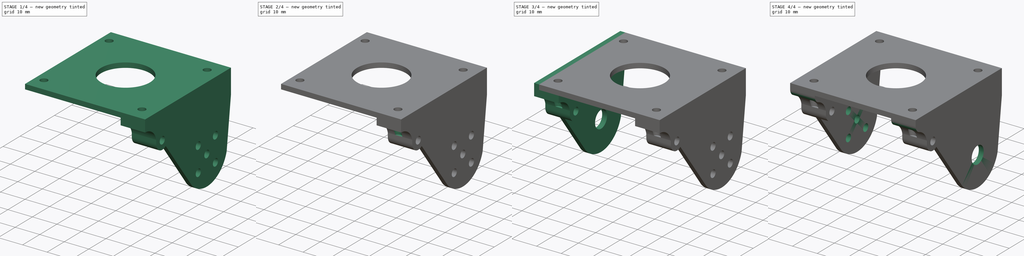
[diagram: build sequence overview — one tinted view per stage of 4, left to right]
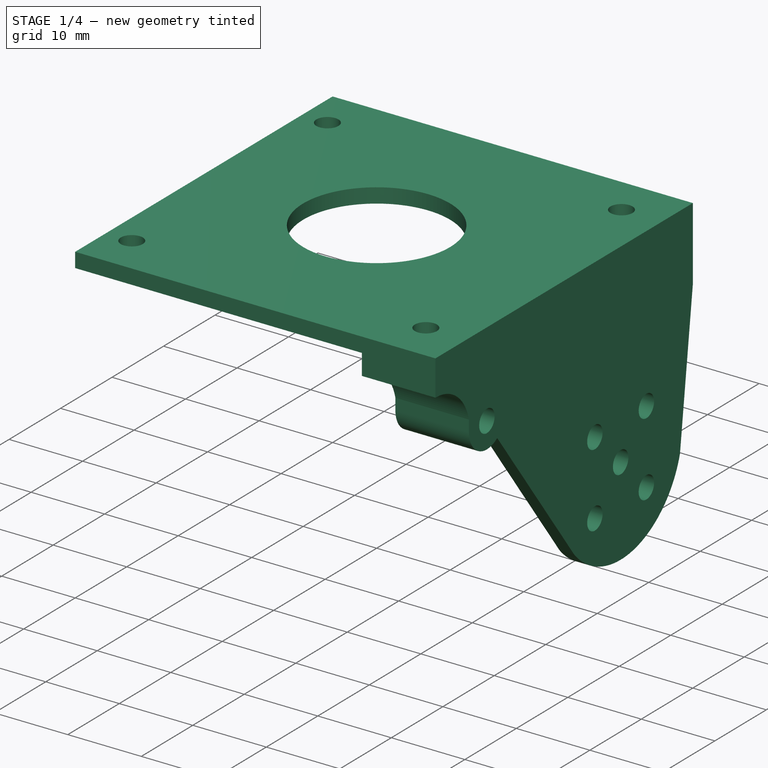
[diagram: stage 1 of 4 — iso view after this stage's code; geometry added in this stage tinted green]
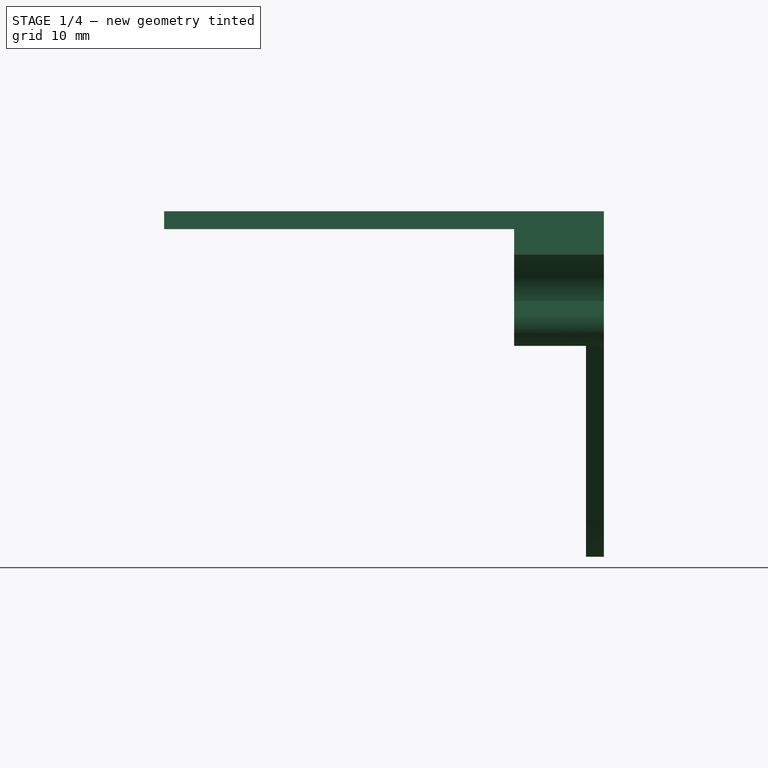
[diagram: stage 1 of 4 — front view after this stage's code; geometry added in this stage tinted green]
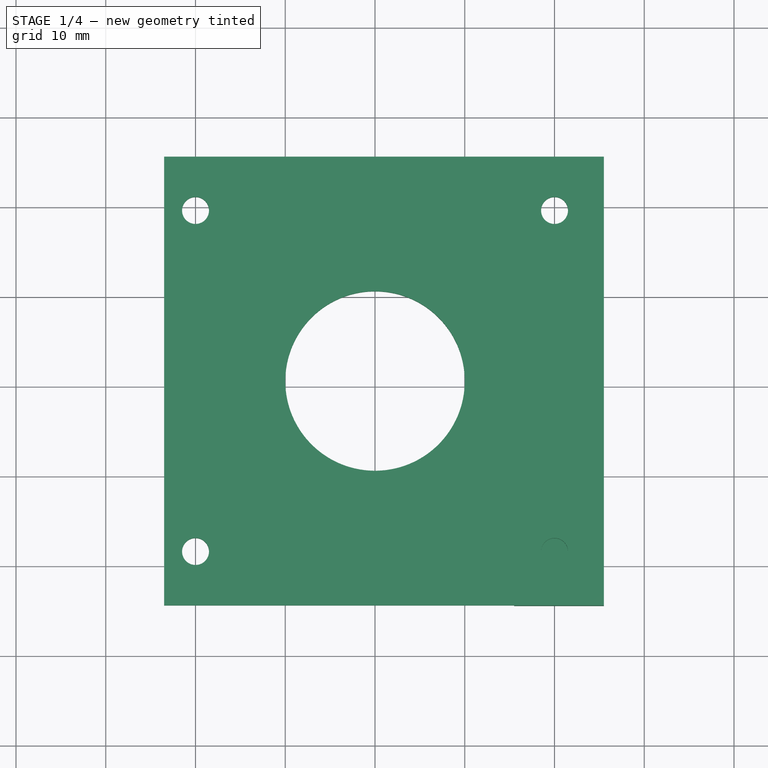
[diagram: stage 1 of 4 — top view after this stage's code; geometry added in this stage tinted green]
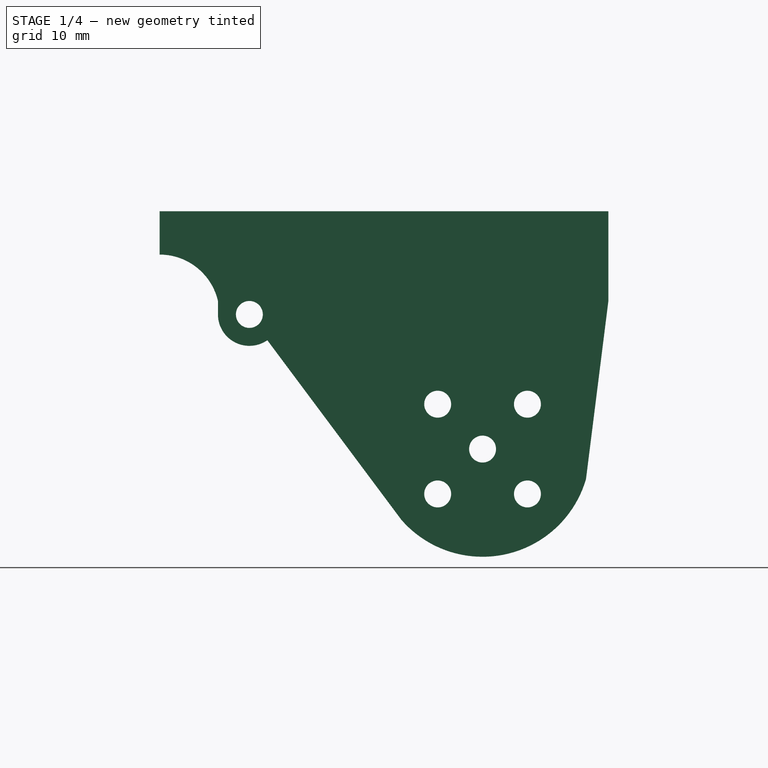
[diagram: stage 1 of 4 — right view after this stage's code; geometry added in this stage tinted green]
FCSTD DOCUMENT  (FreeCAD 0.21R33668 +26 (Git))
Label: 5L_hipjoint_lower2
License: All rights reserved
LicenseURL: http://en.wikipedia.org/wiki/All_rights_reserved
objects: Sketcher::SketchObject×11, PartDesign::Pad×7, PartDesign::Pocket×4, Spreadsheet::Sheet×1, PartDesign::Fillet×1, PartDesign::Body×1, Part::Mirroring×1
note: 37 computed .brp shape members not serialized (recipe doc carries the construction recipe); baked Part::Feature solids carry a one-line shape summary decoded from their .brp

FEATURE [Sketcher::SketchObject] Sketch  label="baseSketch"
  FullyConstrained = true
  MapMode = 5
  Support = -> [XY_Plane]
  expr: Constraints[10] = Spreadsheet.hip_plate_depth
  expr: Constraints[11] = Spreadsheet.cable_hole_dia
  expr: Constraints[14] = Spreadsheet.screw_plate_width
  expr: Constraints[16] = Spreadsheet.screw_plate_depth
  expr: Constraints[20] = Spreadsheet.screw_dia
  expr: Constraints[23] = Spreadsheet.hip_screw_offset
  expr: Constraints[9] = Spreadsheet.hip_plate_width
  sketch-geometry (10):
    g0: LineSegment StartX=-23.5 StartY=25 StartZ=0 EndX=23.5 EndY=25 EndZ=0
    g1: LineSegment StartX=23.5 StartY=25 StartZ=0 EndX=23.5 EndY=-25 EndZ=0
    g2: LineSegment StartX=23.5 StartY=-25 StartZ=0 EndX=-23.5 EndY=-25 EndZ=0
    g3: LineSegment StartX=-23.5 StartY=-25 StartZ=0 EndX=-23.5 EndY=25 EndZ=0
    g4: Circle CenterX=0 CenterY=0 CenterZ=0 NormalX=0 NormalY=0 NormalZ=1 AngleXU=0 Radius=10
    g5: Circle CenterX=-20 CenterY=-19 CenterZ=0 NormalX=0 NormalY=0 NormalZ=1 AngleXU=0 Radius=1.5
    g6: Circle CenterX=20 CenterY=-19 CenterZ=0 NormalX=0 NormalY=0 NormalZ=1 AngleXU=0 Radius=1.5
    g7: Circle CenterX=-20 CenterY=19 CenterZ=0 NormalX=0 NormalY=0 NormalZ=1 AngleXU=0 Radius=1.5
    g8: Circle CenterX=20 CenterY=19 CenterZ=0 NormalX=0 NormalY=0 NormalZ=1 AngleXU=0 Radius=1.5
    g9: GeomPoint X=-20 Y=0 Z=0
  constraints (24):
    c: Coincident(g0,g1)
    c: Coincident(g1,g2)
    c: Coincident(g2,g3)
    c: Coincident(g3,g0)
    c: Horizontal(g0)
    c: Horizontal(g2)
    c: Vertical(g1)
    c: Vertical(g3)
    c: Symmetric(g0,g1,g-1)
    c: DistanceX(g2,g2) = 47
    c: DistanceY(g1,g1) = 50
    c: Diameter(g4) = 20
    c: Coincident(g-1,g4)
    c: Symmetric(g5,g6,g-2)
    c: DistanceX(g5,g6) = 40
    c: Symmetric(g7,g8,g-2)
    c: DistanceY(g6,g8) = 38
    c: Equal(g7,g8)
    c: Equal(g7,g6)
    c: Equal(g7,g5)
    c: Diameter(g7) = 3
    c: Vertical(g5,g7)
    c: Symmetric(g5,g7,g9)
    c: DistanceY(g9,g4) = 0
FEATURE [Spreadsheet::Sheet] Spreadsheet
  cells = A2='thickness; B2(thickness)=2; A4='hip_plate_width; B4(hip_plate_width)=47; A5='hip_plate_depth; B5(hip_plate_depth)=50; C5='z; A6='hip_screw_offset; B6(hip_screw_offset)=0; A7='lower_upper_hip_offset; B7(lower_upper_hip_offset)=10; A8='screw_plate_width; B8(screw_plate_width)=40; A9='screw_plate_depth; B9(screw_plate_depth)=38; A10='screw_housing_width; B10(screw_housing_width)=8; A11='front_connect_screw_len; B11(front_connect_screw_len)==10 - B2; C11='subtract upper hip thickness; A12='back_connect_screw_len; B12(back_connect_screw_len)==6 - B2; C12='4mm minus thickness; A13='screw_distance; B13(screw_distance)=7; A14='screw_center_height; B14(screw_center_height)=25; A15='screw_cover_thickness; B15(screw_cover_thickness)=2; A16='screw_dia; B16(screw_dia)=3; A17='axis_dia; B17(axis_dia)=6; A18='axis_hole_dia; B18(axis_hole_dia)=7; A19='cable_hole_dia; B19(cable_hole_dia)=20; A21='servo_disc_outer_screw_dist; B21(servo_disc_outer_screw_dist)=10; A22='screw_servo_distance; B22(screw_servo_distance)==sqrt(B24 * B24 - B23 * B23); C22='variable e; A23='screw_servo_height; B23(screw_servo_height)=15; C23='variable a; A24='screw_servo_radius; B24(screw_servo_radius)=30; C24='variable f; A25='screw_servo_clearance; B25(screw_servo_clearance)=14; A27='knee_z_len; B27(knee_z_len)=40; A28='knee_x_len; B28(knee_x_len)=50; A29='knee_y_len; B29(knee_y_len)=44; A30='knee_front_len; B30(knee_front_len)==68 - 2 * B32; A31='knee_back_len; B31(knee_back_len)=36; A32='screw_outer_radius; B32(screw_outer_radius)=3; A33='knee_front_holes_dist; B33(knee_front_holes_dist)=55; A34='knee_front_holes_y_offset; B34(knee_front_holes_y_offset)=5; A35='knee_front_back_whole_dist; B35(knee_front_back_whole_dist)=30; A36='knee_back_holes_dist; B36(knee_back_holes_dist)=25
FEATURE [PartDesign::Pad] Pad  label="basePad"
  Direction = (0,0,1)
  Length = 2
  Length2 = 10
  Profile = -> Sketch
  ReferenceAxis = -> Sketch [N_Axis]
  Type = 0
  expr: Length = Spreadsheet.thickness
FEATURE [Sketcher::SketchObject] Sketch001  label="leftSideSketch"
  ExternalGeometry = -> [Pad]
  FullyConstrained = true
  MapMode = 5
  Placement = pos=(23.5,0,0) rot=(0.57735,0.57735,0.57735;2.0944rad)
  Support = -> [Pad]
  expr: Constraints[17] = Spreadsheet.screw_dia
  expr: Constraints[18] = Spreadsheet.screw_servo_height
  expr: Constraints[19] = Spreadsheet.screw_servo_distance
  expr: Constraints[21] = Spreadsheet.screw_dia / 2 + Spreadsheet.screw_cover_thickness
  expr: Constraints[24] = 0
  expr: Constraints[29] = Spreadsheet.thickness
  expr: Constraints[30] = Spreadsheet.lower_upper_hip_offset
  expr: Constraints[34] = 12 mm
  expr: Constraints[37] = Spreadsheet.front_connect_screw_len + Spreadsheet.thickness
  expr: Constraints[5] = Spreadsheet.servo_disc_outer_screw_dist
  expr: Constraints[6] = Spreadsheet.servo_disc_outer_screw_dist
  sketch-geometry (16):
    g0: LineSegment StartX=-25 StartY=2 StartZ=0 EndX=25 EndY=2 EndZ=0
    g1: LineSegment StartX=-13 StartY=-12.3723 StartZ=0 EndX=1.95394 EndY=-32.4067 EndZ=0
    g2: LineSegment StartX=22.5055 StartY=-27.8438 StartZ=0 EndX=25 EndY=-8 EndZ=0
    g3: LineSegment StartX=25 StartY=-8 StartZ=0 EndX=25 EndY=2 EndZ=0
    g4: Circle CenterX=-15 CenterY=-9.5 CenterZ=0 NormalX=0 NormalY=0 NormalZ=1 AngleXU=0 Radius=1.5
    g5: Circle CenterX=15.9808 CenterY=-19.5 CenterZ=0 NormalX=0 NormalY=0 NormalZ=1 AngleXU=0 Radius=1.5
    g6: Circle CenterX=5.98076 CenterY=-19.5 CenterZ=0 NormalX=0 NormalY=0 NormalZ=1 AngleXU=0 Radius=1.5
    g7: Circle CenterX=10.9808 CenterY=-24.5 CenterZ=0 NormalX=0 NormalY=0 NormalZ=1 AngleXU=0 Radius=1.5
    g8: Circle CenterX=15.9808 CenterY=-29.5 CenterZ=0 NormalX=0 NormalY=0 NormalZ=1 AngleXU=0 Radius=1.5
    g9: Circle CenterX=5.98076 CenterY=-29.5 CenterZ=0 NormalX=0 NormalY=0 NormalZ=1 AngleXU=0 Radius=1.5
    g10: ArcOfCircle CenterX=-15 CenterY=-9.5 CenterZ=0 NormalX=0 NormalY=0 NormalZ=1 AngleXU=0 Radius=3.5 StartAngle=3.14159 EndAngle=5.32063
    g11: GeomPoint X=-15 Y=-8 Z=0
    g12: LineSegment StartX=-18.5 StartY=-8 StartZ=0 EndX=-18.5 EndY=-9.5 EndZ=0
    g13: ArcOfCircle CenterX=10.9808 CenterY=-24.5 CenterZ=0 NormalX=0 NormalY=0 NormalZ=1 AngleXU=0 Radius=12 StartAngle=3.86094 EndAngle=6.0008
    g14: LineSegment StartX=-25 StartY=2 StartZ=0 EndX=-25 EndY=-2.82917 EndZ=0
    g15: ArcOfCircle CenterX=-25 CenterY=-9.5 CenterZ=0 NormalX=0 NormalY=0 NormalZ=1 AngleXU=0 Radius=6.67083 StartAngle=0.226799 EndAngle=1.5708
  constraints (42):
    c: Coincident(g0,g-3)
    c: Coincident(g0,g-3)
    c: Coincident(g3,g2)
    c: Coincident(g3,g0)
    c: Vertical(g3)
    c: DistanceX(g6,g5) = 10
    c: DistanceY(g9,g6) = 10
    c: Vertical(g9,g6)
    c: Horizontal(g6,g5)
    c: Horizontal(g8,g9)
    c: Vertical(g8,g5)
    c: Symmetric(g6,g8,g7)
    c: Equal(g5, g6-g9) x4
    c: Equal(g5,g4)
    c: Diameter(g5) = 3
    c: DistanceY(g7,g4) = 15
    c: DistanceX(g4,g7) = 25.9808
    c: Coincident(g10,g4)
    c: Radius(g10) = 3.5
    c: PointOnObject(g11,g4)
    c: Vertical(g11,g4)
    c: DistanceY(g11,g12) = 0
    c: Horizontal(g10,g4)
    c: Coincident(g12,g10)
    c: Vertical(g12)
    c: Coincident(g1,g10)
    c: DistanceX(g4,g1) = 2
    c: DistanceX(g0,g4) = 10
    c: Coincident(g13,g2)
    c: Coincident(g13,g1)
    c: Horizontal(g2,g12)
    c: Radius(g13) = 12
    c: Coincident(g13,g7)
    c: Distance(g1) = 25
    c: DistanceY(g12,g0) = 10
    c: Vertical(g14,g0)
    c: Coincident(g14,g0)
    c: Coincident(g15,g14)
    c: Coincident(g15,g12)
    c: Vertical(g14,g15)
    c: Horizontal(g15,g4)
    c: Distance(g2) = 20
FEATURE [PartDesign::Pad] Pad001  label="leftSidePad"
  BaseFeature = -> Pad
  Direction = (1,0,0)
  Length = 2
  Length2 = 10
  Profile = -> Sketch001
  ReferenceAxis = -> Sketch001 [N_Axis]
  Type = 0
  expr: Length = Spreadsheet.thickness
FEATURE [Sketcher::SketchObject] Sketch002  label="leftFrontScrewHouseSketch"
  ExternalGeometry = -> [Pad001]
  FullyConstrained = true
  MapMode = 5
  Placement = pos=(23.5,0,0) rot=(0.57735,-0.57735,-0.57735;2.0944rad)
  Support = -> [Pad001]
  sketch-geometry (7):
    g0: LineSegment StartX=18.5 StartY=-8 StartZ=0 EndX=18.5 EndY=-9.5 EndZ=0
    g1: LineSegment StartX=11.5 StartY=-9.5 StartZ=0 EndX=11.5 EndY=0 EndZ=0
    g2: LineSegment StartX=25 StartY=0 StartZ=0 EndX=11.5 EndY=0 EndZ=0
    g3: ArcOfCircle CenterX=25 CenterY=-9.5 CenterZ=0 NormalX=0 NormalY=0 NormalZ=1 AngleXU=0 Radius=6.67083 StartAngle=1.5708 EndAngle=2.91479
    g4: LineSegment StartX=25 StartY=0 StartZ=0 EndX=25 EndY=-2.82917 EndZ=0
    g5: ArcOfCircle CenterX=15 CenterY=-9.5 CenterZ=0 NormalX=0 NormalY=0 NormalZ=1 AngleXU=0 Radius=3.5 StartAngle=3.14159 EndAngle=6.28319
    g6: Circle CenterX=15 CenterY=-9.5 CenterZ=0 NormalX=0 NormalY=0 NormalZ=1 AngleXU=0 Radius=1.5
  constraints (18):
    c: PointOnObject(g1,g-1)
    c: Coincident(g0,g-5)
    c: Vertical(g1)
    c: Coincident(g2,g1)
    c: Coincident(g3,g-4)
    c: Coincident(g3,g0)
    c: Coincident(g0,g-5)
    c: Vertical(g3,g-4)
    c: Coincident(g4,g2)
    c: Coincident(g4,g3)
    c: Coincident(g5,g0)
    c: Vertical(g5,g-6)
    c: Horizontal(g5,g-6)
    c: Horizontal(g0,g5)
    c: Coincident(g1,g5)
    c: Coincident(g2,g-3)
    c: Coincident(g6,g5)
    c: Equal(g-6,g6)
FEATURE [PartDesign::Pad] Pad002  label="leftFrontScrewHousePad"
  BaseFeature = -> Pad001
  Direction = (-1,0,0)
  Length = 8
  Length2 = 10
  Profile = -> Sketch002
  ReferenceAxis = -> Sketch002 [N_Axis]
  Type = 0
  expr: Length = Spreadsheet.front_connect_screw_len
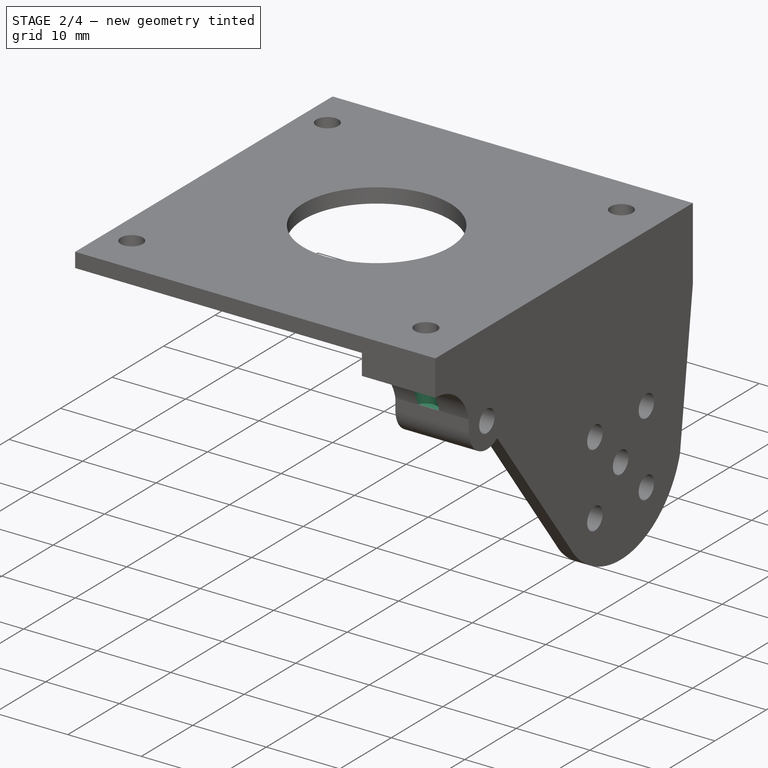
[diagram: stage 2 of 4 — iso view after this stage's code; geometry added in this stage tinted green]
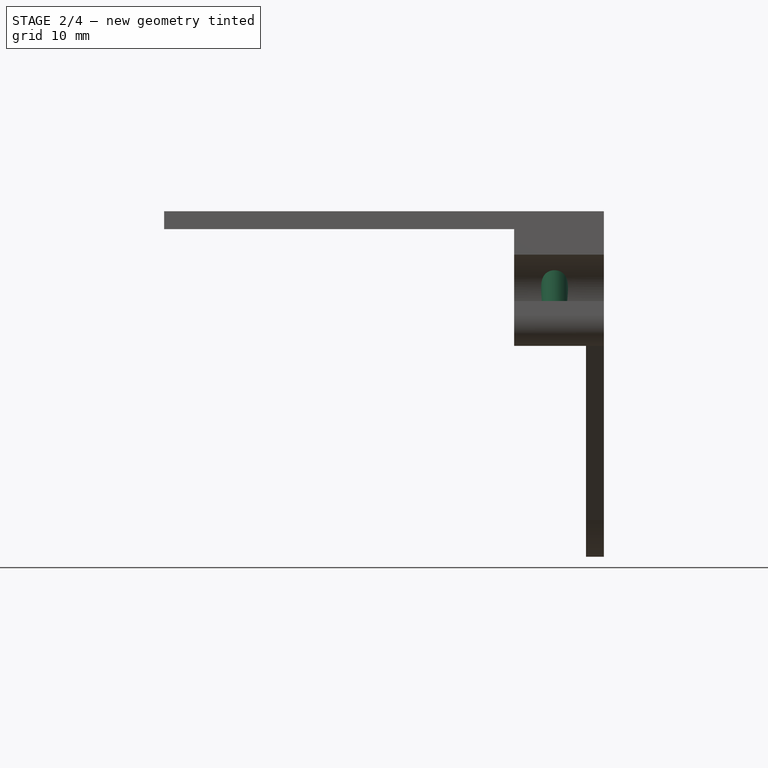
[diagram: stage 2 of 4 — front view after this stage's code; geometry added in this stage tinted green]
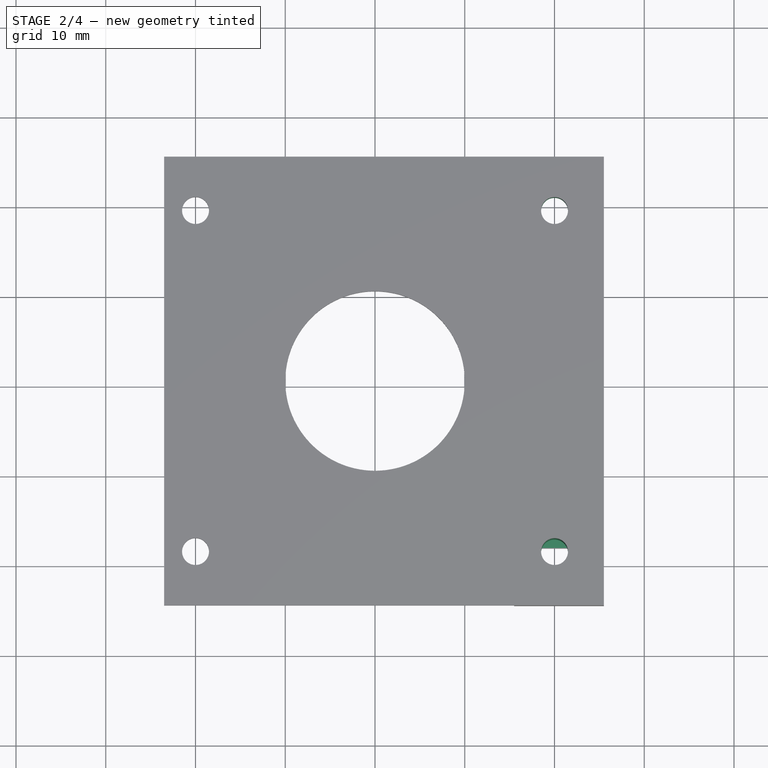
[diagram: stage 2 of 4 — top view after this stage's code; geometry added in this stage tinted green]
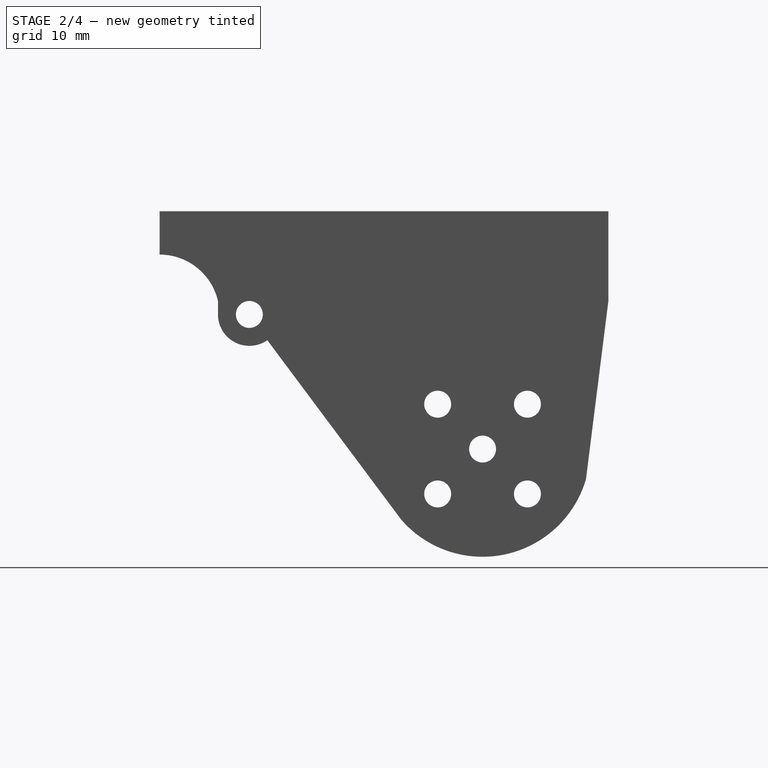
[diagram: stage 2 of 4 — right view after this stage's code; geometry added in this stage tinted green]
FEATURE [Sketcher::SketchObject] Sketch003  label="leftBackScrewHouseSketch"
  ExternalGeometry = -> [Pad002]
  FullyConstrained = true
  MapMode = 5
  Placement = pos=(23.5,0,0) rot=(0.57735,-0.57735,-0.57735;2.0944rad)
  Support = -> [Pad002]
  expr: Constraints[11] = Spreadsheet.screw_cover_thickness
  expr: Constraints[12] = Spreadsheet.screw_cover_thickness
  expr: Constraints[16] = Spreadsheet.back_connect_screw_len
  sketch-geometry (6):
    g0: LineSegment StartX=-25 StartY=0 StartZ=0 EndX=-15.5 EndY=0 EndZ=0
    g1: LineSegment StartX=-25 StartY=0 StartZ=0 EndX=-25 EndY=-1.5 EndZ=0
    g2: LineSegment StartX=-15.5 StartY=0 StartZ=0 EndX=-15.5 EndY=-2 EndZ=0
    g3: LineSegment StartX=-17.5 StartY=-4 StartZ=0 EndX=-22.5 EndY=-4 EndZ=0
    g4: ArcOfCircle CenterX=-22.5 CenterY=-1.5 CenterZ=0 NormalX=0 NormalY=0 NormalZ=1 AngleXU=0 Radius=2.5 StartAngle=3.14159 EndAngle=4.71239
    g5: ArcOfCircle CenterX=-17.5 CenterY=-2 CenterZ=0 NormalX=0 NormalY=0 NormalZ=1 AngleXU=0 Radius=2 StartAngle=4.71239 EndAngle=6.28319
  constraints (17):
    c: Coincident(g0,g-5)
    c: Horizontal(g0)
    c: Coincident(g1,g0)
    c: Vertical(g1)
    c: Coincident(g2,g0)
    c: Vertical(g2)
    c: Horizontal(g3)
    c: Coincident(g4,g3)
    c: Coincident(g4,g1)
    c: Vertical(g4,g3)
    c: Horizontal(g4,g1)
    c: DistanceX(g-6,g0) = 2
    c: DistanceX(g3,g-6) = 2
    c: Tangent(g2,g5) = 1.5708
    c: Tangent(g3,g5) = 1.5708
    c: Vertical(g5,g-6)
    c: DistanceY(g3,g-6) = 4
FEATURE [Sketcher::SketchObject] Sketch004  label="leftLowerHoleSketch"
  ExternalGeometry = -> [Pad002]
  FullyConstrained = true
  MapMode = 5
  Support = -> [Pad002]
  sketch-geometry (1):
    g0: Circle CenterX=20 CenterY=-19 CenterZ=0 NormalX=0 NormalY=0 NormalZ=1 AngleXU=0 Radius=1.5
  constraints (2):
    c: Coincident(g0,g-3)
    c: Tangent(g0,g-3)
FEATURE [PartDesign::Pocket] Pocket  label="leftLowerHolePocket"
  BaseFeature = -> Pad002
  Direction = (0,0,-1)
  Length = 8
  Length2 = 5
  Profile = -> Sketch004
  ReferenceAxis = -> Sketch004 [N_Axis]
  Type = 0
  expr: Length = Spreadsheet.front_connect_screw_len
FEATURE [PartDesign::Pad] Pad003  label="leftBackScrewHousePad"
  BaseFeature = -> Pocket
  Direction = (-1,0,0)
  Length = 8
  Length2 = 10
  Profile = -> Sketch003
  ReferenceAxis = -> Sketch003 [N_Axis]
  Type = 0
  expr: Length = Spreadsheet.front_connect_screw_len
FEATURE [Sketcher::SketchObject] Sketch005  label="leftBackScrewHoleSketch"
  ExternalGeometry = -> [Pad003]
  FullyConstrained = true
  MapMode = 5
  Support = -> [Pad003]
  sketch-geometry (1):
    g0: Circle CenterX=20 CenterY=19 CenterZ=0 NormalX=0 NormalY=0 NormalZ=1 AngleXU=0 Radius=1.5
  constraints (2):
    c: Coincident(g0,g-3)
    c: Tangent(g0,g-3)
FEATURE [PartDesign::Pocket] Pocket001  label="leftBackScrewHolePocket"
  BaseFeature = -> Pad003
  Direction = (0,0,-1)
  Length = 4
  Length2 = 5
  Profile = -> Sketch005
  ReferenceAxis = -> Sketch005 [N_Axis]
  Type = 0
  expr: Length = Spreadsheet.back_connect_screw_len
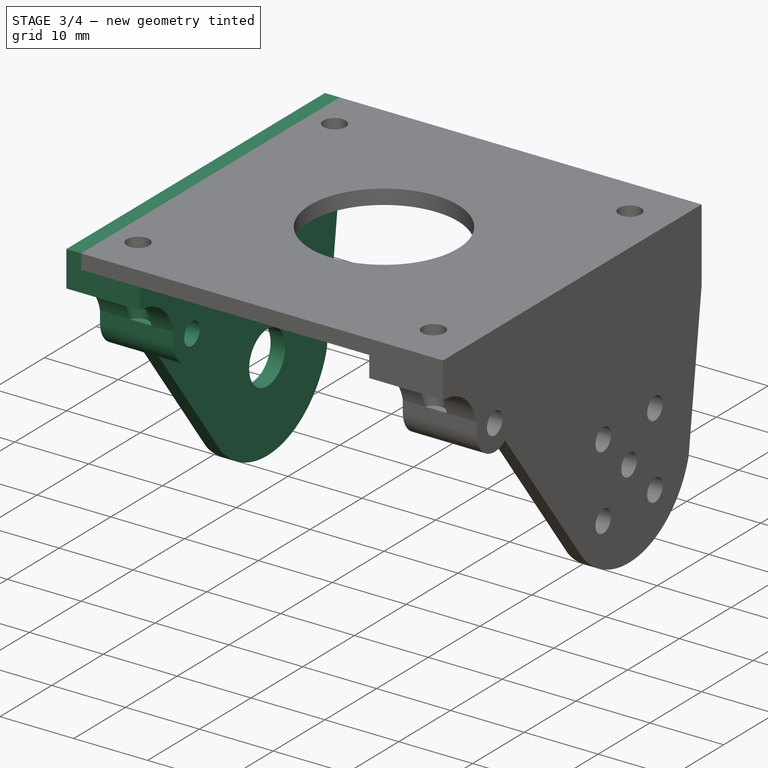
[diagram: stage 3 of 4 — iso view after this stage's code; geometry added in this stage tinted green]
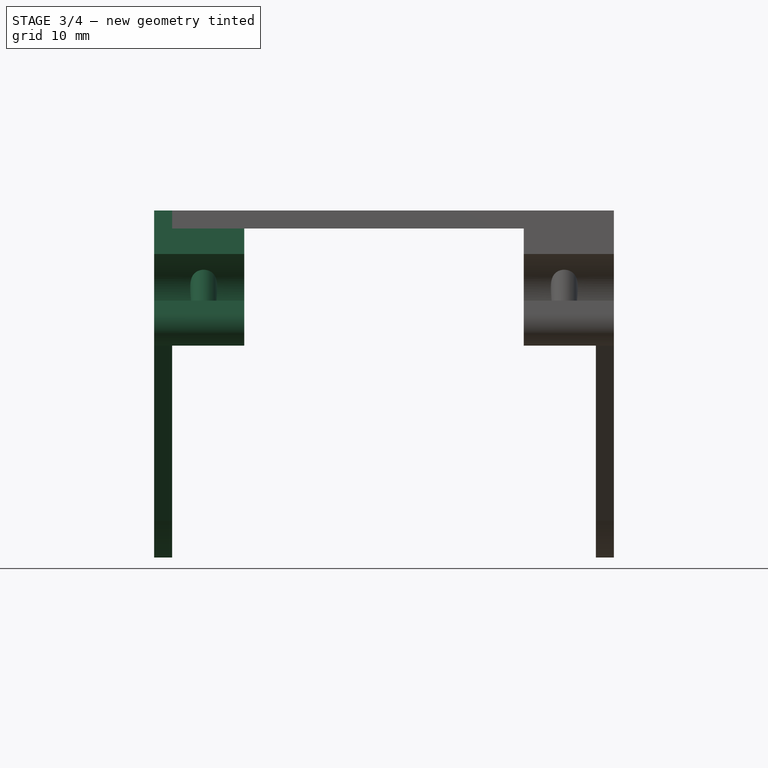
[diagram: stage 3 of 4 — front view after this stage's code; geometry added in this stage tinted green]
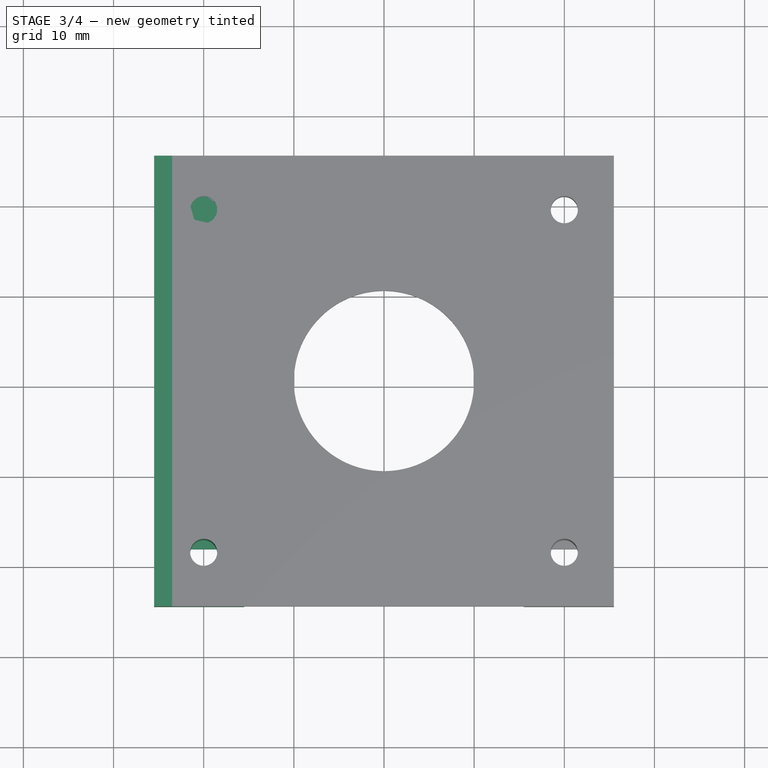
[diagram: stage 3 of 4 — top view after this stage's code; geometry added in this stage tinted green]
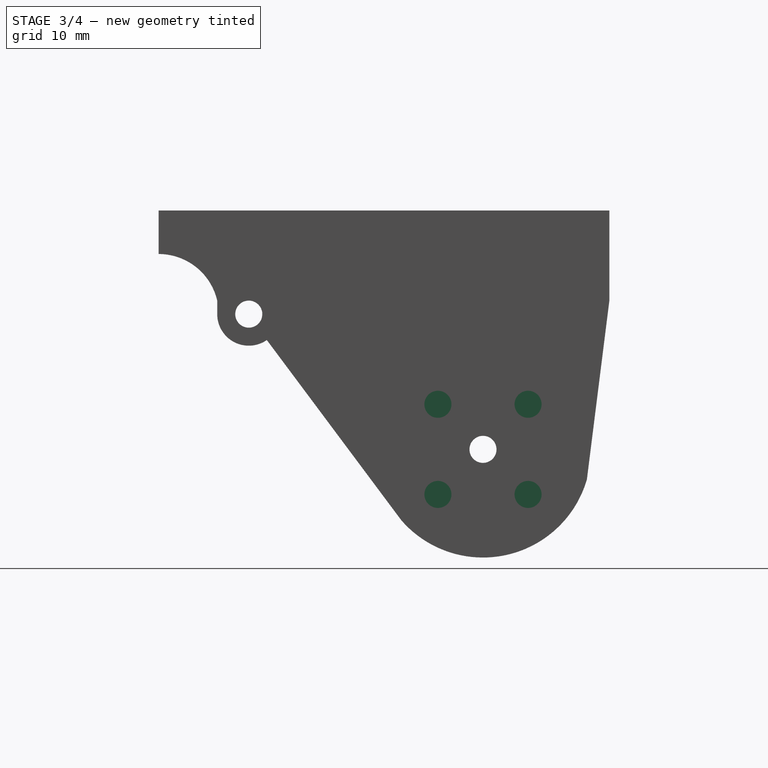
[diagram: stage 3 of 4 — right view after this stage's code; geometry added in this stage tinted green]
FEATURE [Sketcher::SketchObject] Sketch006  label="rightSideSketch"
  ExternalGeometry = -> [Pocket001]
  FullyConstrained = true
  MapMode = 5
  Placement = pos=(-23.5,0,0) rot=(0.57735,-0.57735,-0.57735;2.0944rad)
  Support = -> [Pocket001]
  expr: Constraints[23] = Spreadsheet.axis_hole_dia
  sketch-geometry (11):
    g0: LineSegment StartX=25 StartY=2 StartZ=0 EndX=-25 EndY=2 EndZ=0
    g1: LineSegment StartX=-25 StartY=2 StartZ=0 EndX=-25 EndY=-8 EndZ=0
    g2: LineSegment StartX=-25 StartY=-8 StartZ=0 EndX=-22.5055 EndY=-27.8438 EndZ=0
    g3: LineSegment StartX=-1.95394 StartY=-32.4067 StartZ=0 EndX=13 EndY=-12.3723 EndZ=0
    g4: LineSegment StartX=18.5 StartY=-9.5 StartZ=0 EndX=18.5 EndY=-8 EndZ=0
    g5: LineSegment StartX=25 StartY=-2.82917 StartZ=0 EndX=25 EndY=2 EndZ=0
    g6: ArcOfCircle CenterX=-10.9808 CenterY=-24.5 CenterZ=0 NormalX=0 NormalY=0 NormalZ=1 AngleXU=0 Radius=12 StartAngle=3.42398 EndAngle=5.56384
    g7: ArcOfCircle CenterX=15 CenterY=-9.5 CenterZ=0 NormalX=0 NormalY=0 NormalZ=1 AngleXU=0 Radius=3.5 StartAngle=4.10414 EndAngle=6.28319
    g8: ArcOfCircle CenterX=25 CenterY=-9.5 CenterZ=0 NormalX=0 NormalY=0 NormalZ=1 AngleXU=0 Radius=6.67083 StartAngle=1.5708 EndAngle=2.91479
    g9: Circle CenterX=15 CenterY=-9.5 CenterZ=0 NormalX=0 NormalY=0 NormalZ=1 AngleXU=0 Radius=1.5
    g10: Circle CenterX=-10.9808 CenterY=-24.5 CenterZ=0 NormalX=0 NormalY=0 NormalZ=1 AngleXU=0 Radius=3.5
  constraints (25):
    c: Coincident(g-11,g0)
    c: Coincident(g0,g-11)
    c: Coincident(g0,g1)
    c: Coincident(g1,g-4)
    c: Coincident(g1,g2)
    c: Coincident(g2,g-5)
    c: Coincident(g4,g-8)
    c: Coincident(g5,g0)
    c: Coincident(g6,g3)
    c: Coincident(g6,g2)
    c: Coincident(g7,g3)
    c: Coincident(g8,g5)
    c: Coincident(g8,g4)
    c: Coincident(g5,g-9)
    c: Vertical(g-8,g8)
    c: Vertical(g7,g-12)
    c: Coincident(g7,g4)
    c: Coincident(g4,g-7)
    c: Coincident(g3,g-6)
    c: Coincident(g3,g-6)
    c: Coincident(g9,g7)
    c: Tangent(g9,g-12)
    c: Coincident(g10,g6)
    c: Diameter(g10) = 7
    c: Horizontal(g6,g-5)
FEATURE [PartDesign::Pad] Pad004  label="rightSidePad"
  BaseFeature = -> Pocket001
  Direction = (-1,0,0)
  Length = 2
  Length2 = 10
  Profile = -> Sketch006
  ReferenceAxis = -> Sketch006 [N_Axis]
  Type = 0
  expr: Length = Spreadsheet.thickness
FEATURE [Sketcher::SketchObject] Sketch007  label="rightFrontScrewHouseSketch"
  ExternalGeometry = -> [Pad004]
  FullyConstrained = true
  MapMode = 5
  Placement = pos=(-23.5,0,0) rot=(0.57735,0.57735,0.57735;2.0944rad)
  Support = -> [Pad004]
  sketch-geometry (7):
    g0: LineSegment StartX=-11.5 StartY=0 StartZ=0 EndX=-25 EndY=0 EndZ=0
    g1: LineSegment StartX=-25 StartY=0 StartZ=0 EndX=-25 EndY=-2.82917 EndZ=0
    g2: LineSegment StartX=-11.5 StartY=0 StartZ=0 EndX=-11.5 EndY=-9.5 EndZ=0
    g3: LineSegment StartX=-18.5 StartY=-8 StartZ=0 EndX=-18.5 EndY=-9.5 EndZ=0
    g4: ArcOfCircle CenterX=-25 CenterY=-9.5 CenterZ=0 NormalX=0 NormalY=0 NormalZ=1 AngleXU=0 Radius=6.67083 StartAngle=0.226799 EndAngle=1.5708
    g5: ArcOfCircle CenterX=-15 CenterY=-9.5 CenterZ=0 NormalX=0 NormalY=0 NormalZ=1 AngleXU=0 Radius=3.5 StartAngle=3.14159 EndAngle=6.28319
    g6: Circle CenterX=-15 CenterY=-9.5 CenterZ=0 NormalX=0 NormalY=0 NormalZ=1 AngleXU=0 Radius=1.5
  constraints (16):
    c: Coincident(g0,g-9)
    c: Coincident(g0,g-4)
    c: Coincident(g1,g0)
    c: Coincident(g1,g-5)
    c: Coincident(g2,g0)
    c: Coincident(g2,g-9)
    c: Coincident(g3,g-6)
    c: Coincident(g3,g-7)
    c: Coincident(g4,g1)
    c: Coincident(g4,g3)
    c: Coincident(g5,g3)
    c: Coincident(g5,g2)
    c: Horizontal(g-5,g4)
    c: Horizontal(g5,g-8)
    c: Coincident(g6,g5)
    c: Equal(g6,g-8)
FEATURE [PartDesign::Pad] Pad005  label="rightFrontScrewHousePad"
  BaseFeature = -> Pad004
  Direction = (1,0,0)
  Length = 8
  Length2 = 10
  Profile = -> Sketch007
  ReferenceAxis = -> Sketch007 [N_Axis]
  Type = 0
  expr: Length = Spreadsheet.front_connect_screw_len
FEATURE [Sketcher::SketchObject] Sketch008  label="rightFrontScrewHoleSketch"
  ExternalGeometry = -> [Pad005]
  FullyConstrained = true
  MapMode = 5
  Support = -> [Pad005]
  sketch-geometry (1):
    g0: Circle CenterX=-20 CenterY=-19 CenterZ=0 NormalX=0 NormalY=0 NormalZ=1 AngleXU=0 Radius=1.5
  constraints (2):
    c: Coincident(g0,g-3)
    c: Tangent(g0,g-3)
FEATURE [PartDesign::Pocket] Pocket002  label="rightFrontScrewHolePocket"
  BaseFeature = -> Pad005
  Direction = (0,0,-1)
  Length = 8
  Length2 = 5
  Profile = -> Sketch008
  ReferenceAxis = -> Sketch008 [N_Axis]
  Type = 0
  expr: Length = Spreadsheet.front_connect_screw_len
FEATURE [Sketcher::SketchObject] Sketch009  label="rightBackScrewHouseSketch"
  ExternalGeometry = -> [Pocket002]
  FullyConstrained = true
  MapMode = 5
  Placement = pos=(-23.5,0,0) rot=(0.57735,0.57735,0.57735;2.0944rad)
  Support = -> [Pocket002]
  sketch-geometry (6):
    g0: LineSegment StartX=25 StartY=0 StartZ=0 EndX=15.5 EndY=0 EndZ=0
    g1: LineSegment StartX=15.5 StartY=0 StartZ=0 EndX=15.5 EndY=-2 EndZ=0
    g2: LineSegment StartX=17.5 StartY=-4 StartZ=0 EndX=22.5 EndY=-4 EndZ=0
    g3: LineSegment StartX=25 StartY=-1.5 StartZ=0 EndX=25 EndY=0 EndZ=0
    g4: ArcOfCircle CenterX=17.5 CenterY=-2 CenterZ=0 NormalX=0 NormalY=0 NormalZ=1 AngleXU=0 Radius=2 StartAngle=3.14159 EndAngle=4.71239
    g5: ArcOfCircle CenterX=22.5 CenterY=-1.5 CenterZ=0 NormalX=0 NormalY=0 NormalZ=1 AngleXU=0 Radius=2.5 StartAngle=4.71239 EndAngle=6.28319
  constraints (14):
    c: Coincident(g0,g-8)
    c: Coincident(g0,g-4)
    c: Coincident(g1,g0)
    c: Coincident(g1,g-5)
    c: Coincident(g2,g-6)
    c: Coincident(g2,g-7)
    c: Coincident(g3,g-8)
    c: Coincident(g3,g0)
    c: Coincident(g4,g1)
    c: Coincident(g4,g2)
    c: Coincident(g5,g3)
    c: Horizontal(g-5,g4)
    c: Horizontal(g5,g-7)
    c: Coincident(g5,g2)
FEATURE [PartDesign::Pad] Pad006  label="rightBackScrewHousePad"
  BaseFeature = -> Pocket002
  Direction = (1,0,0)
  Length = 8
  Length2 = 10
  Profile = -> Sketch009
  ReferenceAxis = -> Sketch009 [N_Axis]
  Type = 0
  expr: Length = Spreadsheet.front_connect_screw_len
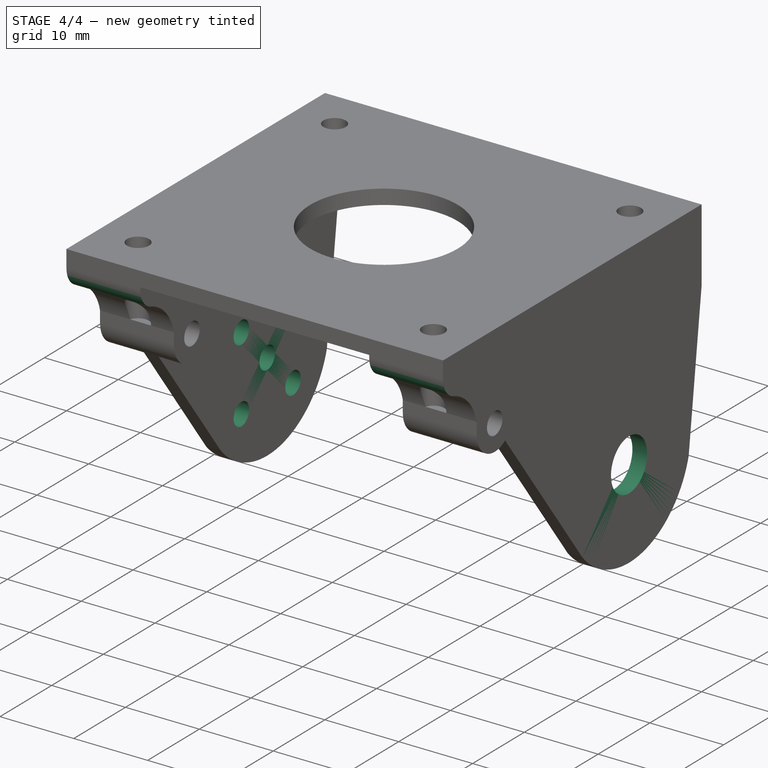
[diagram: stage 4 of 4 — iso view after this stage's code; geometry added in this stage tinted green]
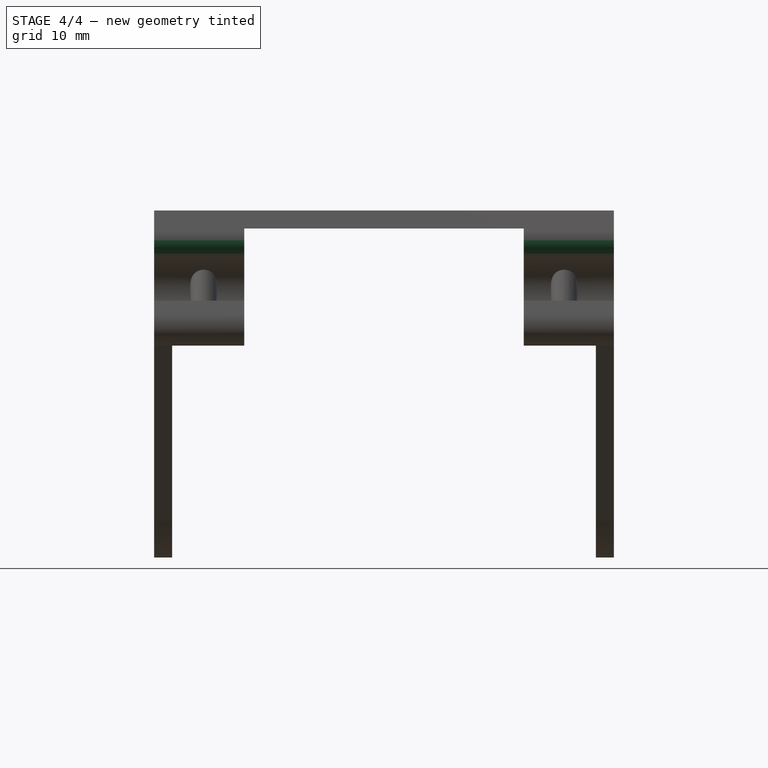
[diagram: stage 4 of 4 — front view after this stage's code; geometry added in this stage tinted green]
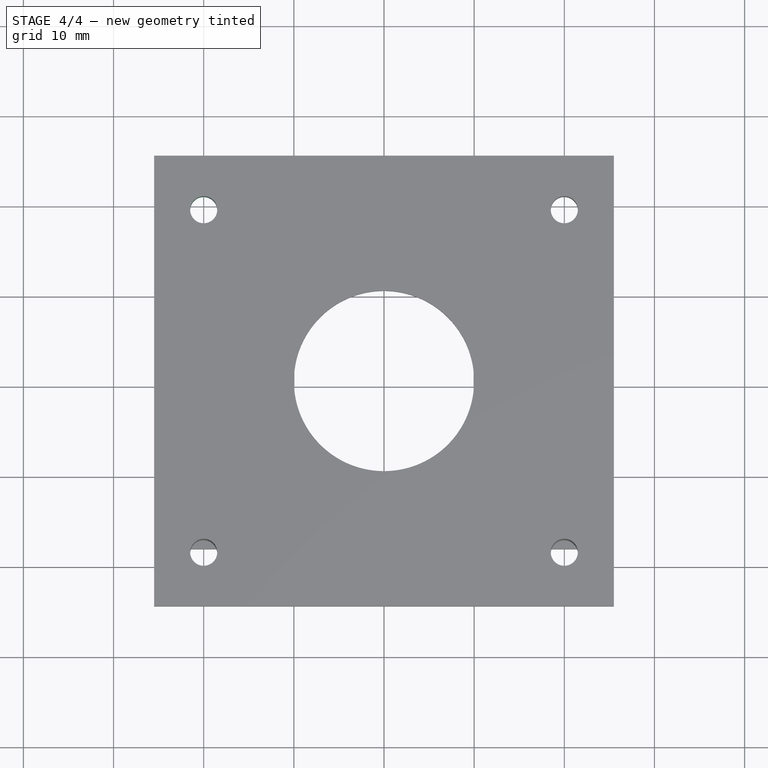
[diagram: stage 4 of 4 — top view after this stage's code; geometry added in this stage tinted green]
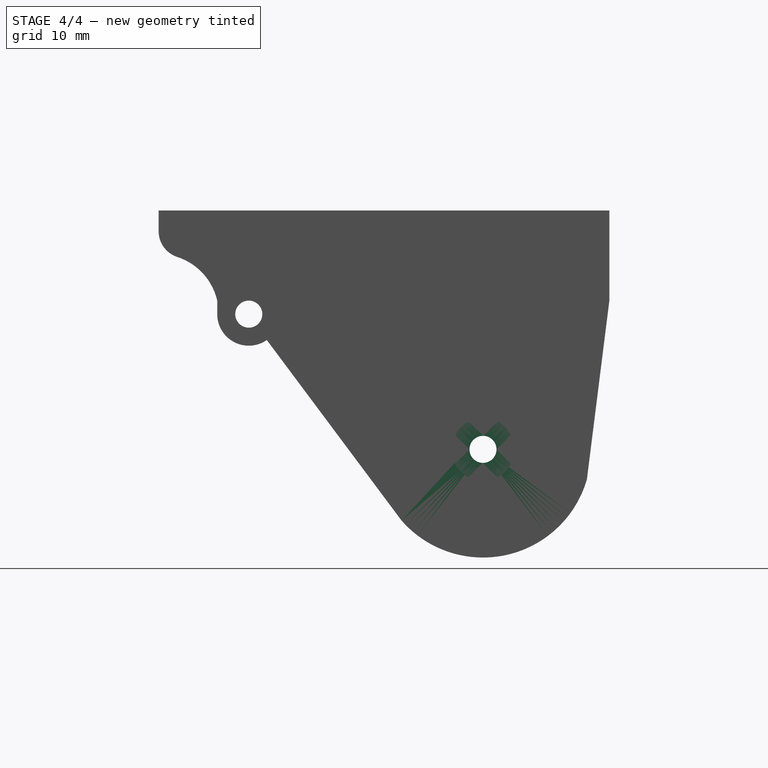
[diagram: stage 4 of 4 — right view after this stage's code; geometry added in this stage tinted green]
FEATURE [Sketcher::SketchObject] Sketch010  label="rightBackScrewHoleSketch"
  ExternalGeometry = -> [Pad006]
  FullyConstrained = true
  MapMode = 5
  Support = -> [Pad006]
  sketch-geometry (1):
    g0: Circle CenterX=-20 CenterY=19 CenterZ=0 NormalX=0 NormalY=0 NormalZ=1 AngleXU=0 Radius=1.5
  constraints (2):
    c: Coincident(g0,g-3)
    c: Tangent(g0,g-3)
FEATURE [PartDesign::Pocket] Pocket003  label="rightBackScrewHolePocket"
  BaseFeature = -> Pad006
  Direction = (0,0,-1)
  Length = 4
  Length2 = 5
  Profile = -> Sketch010
  ReferenceAxis = -> Sketch010 [N_Axis]
  Type = 0
  expr: Length = Spreadsheet.back_connect_screw_len
FEATURE [PartDesign::Fillet] Fillet
  Base = -> Pocket003 [Edge179,Edge132,Edge172,Edge151]
  BaseFeature = -> Pocket003
  Radius = 3
  SupportTransform = false
  UseAllEdges = false
FEATURE [PartDesign::Body] Body
  Group = -> [Sketch,Pad,Sketch001,Pad001,Sketch002,Pad002,Pocket,Sketch004,Sketch003,Pad003,Sketch005,Pocket001,Sketch006,Pad004,Sketch007,Pad005,Sketch008,Pocket002,Sketch009,Pad006,Sketch010,Pocket003,Fillet]
  Origin = -> Origin
  Tip = -> Fillet
FEATURE [Part::Mirroring] Part__Mirroring  label="Body (Mirror #1)"
  Base = (0,0,0)
  Normal = (1,0,0)
  Source = -> Body
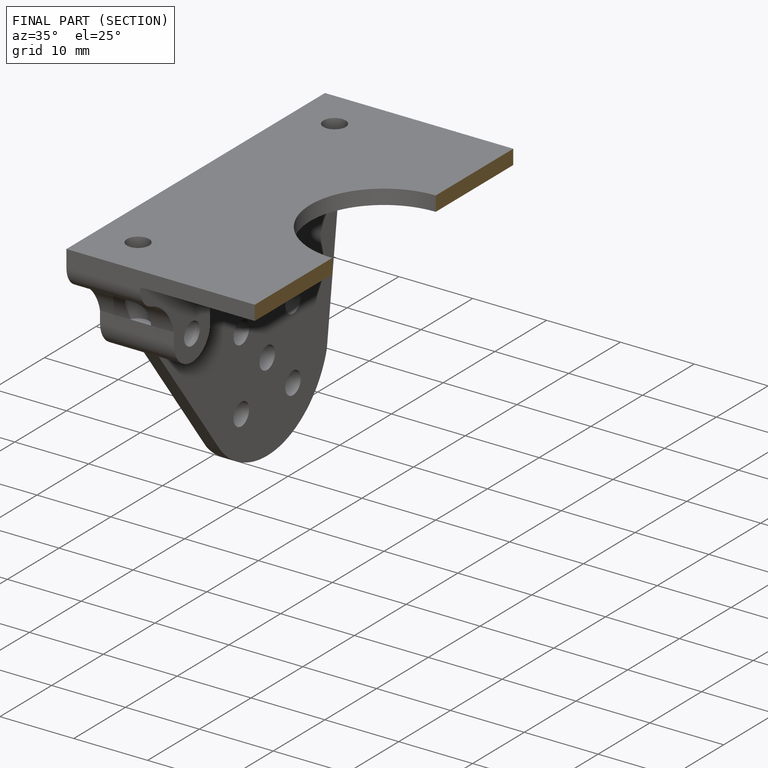
[diagram: finished part — half-section view (interior)]
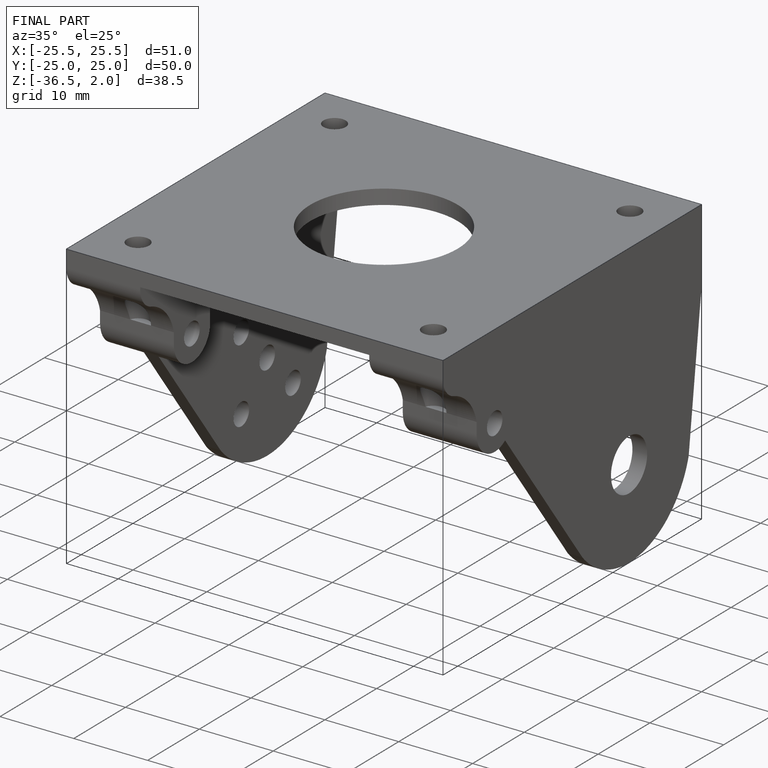
[diagram: finished part — iso view with bounding-box wireframe]
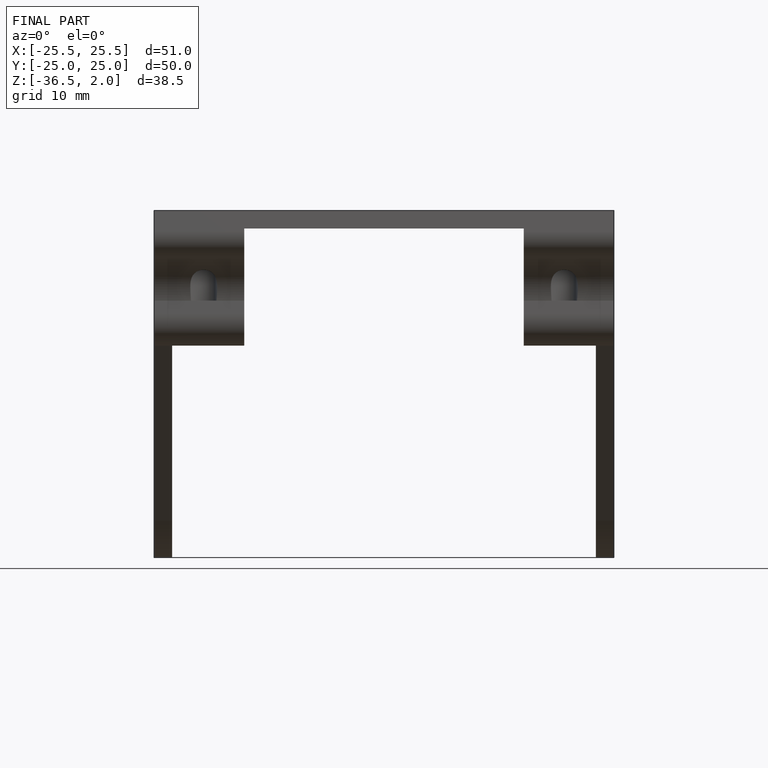
[diagram: finished part — front view with bounding-box wireframe]
